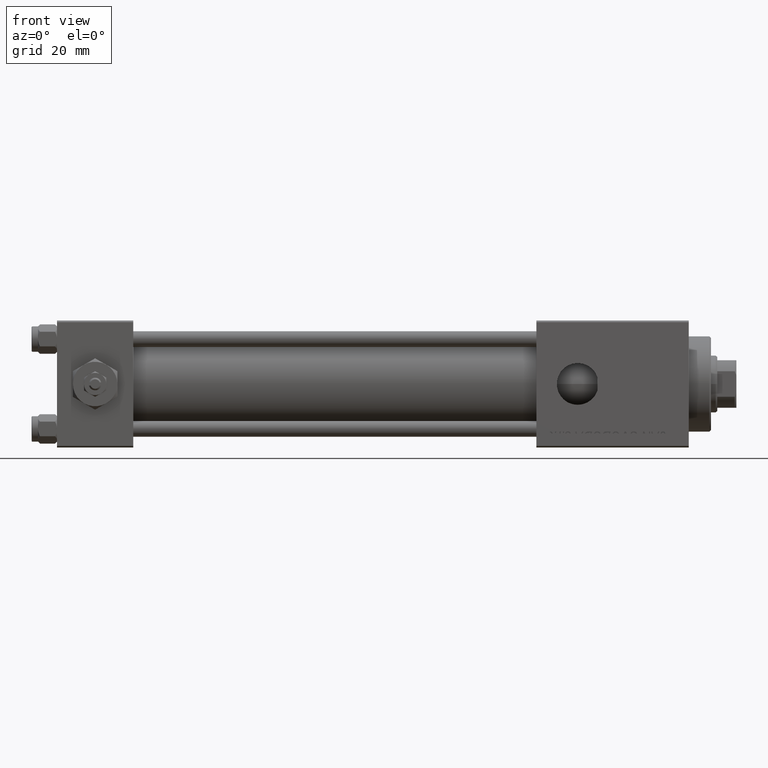
[diagram: clean part render]
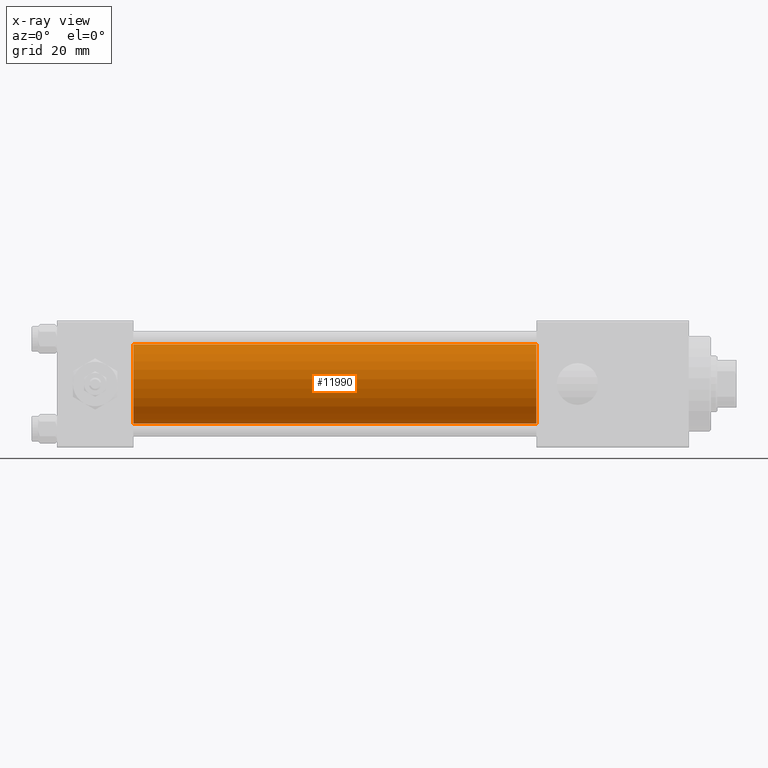
[diagram: x-ray — body ghosted, one internal face saturated and labeled with its STEP entity id]
A machine part, front view, then the same camera in x-ray: the body is ghosted and one INTERNAL B-rep face — a face not visible from any outside direction — is saturated and labeled: STEP entity #11990.
In plain terms, the highlighted cylindrical surface (partial cylindrical patch) has radius 12.5 mm, axis along (-1, -0, -0).
Its self-contained STEP definition (entity closure, byte-faithful):
#1827 = CARTESIAN_POINT ( 'NONE',  ( 151.0000000000000000, -2.602085213965210642E-15, 0.000000000000000000 ) ) ;
#2344 = CARTESIAN_POINT ( 'NONE',  ( 151.0000000000000000, -2.602085213965210642E-15, 0.000000000000000000 ) ) ;
#2602 = DIRECTION ( 'NONE',  ( 1.000000000000000000, 0.000000000000000000, 0.000000000000000000 ) ) ;
#3847 = VECTOR ( 'NONE', #47648, 1000.000000000000000 ) ;
#4019 = DIRECTION ( 'NONE',  ( -1.000000000000000000, -0.000000000000000000, -0.000000000000000000 ) ) ;
#5938 = CARTESIAN_POINT ( 'NONE',  ( 24.00000000000000000, -2.602085213965210642E-15, 0.000000000000000000 ) ) ;
#7435 = LINE ( 'NONE', #47335, #31194 ) ;
#8948 = CARTESIAN_POINT ( 'NONE',  ( 151.0000000000000000, -1.071276715031019515E-15, -12.49999999999999645 ) ) ;
#11990 = ADVANCED_FACE ( 'NONE', ( #46172 ), #29382, .F. ) ;
#13005 = CIRCLE ( 'NONE', #49080, 12.49999999999999645 ) ;
#13014 = DIRECTION ( 'NONE',  ( 1.000000000000000000, 0.000000000000000000, 0.000000000000000000 ) ) ;
#14386 = DIRECTION ( 'NONE',  ( 0.000000000000000000, 0.000000000000000000, -1.000000000000000000 ) ) ;
#16310 = CIRCLE ( 'NONE', #45649, 12.49999999999999645 ) ;
#21101 = ORIENTED_EDGE ( 'NONE', *, *, #48055, .F. ) ;
#21499 = CARTESIAN_POINT ( 'NONE',  ( 24.00000000000000000, -1.071276715031019515E-15, -12.49999999999999645 ) ) ;
#24842 = CARTESIAN_POINT ( 'NONE',  ( 24.00000000000000000, -2.602085213965210642E-15, 12.49999999999999645 ) ) ;
#27446 = LINE ( 'NONE', #27946, #3847 ) ;
#27946 = CARTESIAN_POINT ( 'NONE',  ( 151.0000000000000000, -2.602085213965210642E-15, 12.49999999999999645 ) ) ;
#29044 = DIRECTION ( 'NONE',  ( 0.000000000000000000, 0.000000000000000000, -1.000000000000000000 ) ) ;
#29382 = CYLINDRICAL_SURFACE ( 'NONE', #34770, 12.49999999999999645 ) ;
#31194 = VECTOR ( 'NONE', #4019, 1000.000000000000000 ) ;
#33345 = ORIENTED_EDGE ( 'NONE', *, *, #39942, .T. ) ;
#33575 = DIRECTION ( 'NONE',  ( -1.000000000000000000, -0.000000000000000000, -0.000000000000000000 ) ) ;
#34770 = AXIS2_PLACEMENT_3D ( 'NONE', #1827, #33575, #45392 ) ;
#36814 = VERTEX_POINT ( 'NONE', #8948 ) ;
#38302 = ORIENTED_EDGE ( 'NONE', *, *, #45741, .T. ) ;
#39942 = EDGE_CURVE ( 'NONE', #36814, #49888, #7435, .T. ) ;
#43596 = VERTEX_POINT ( 'NONE', #24842 ) ;
#44745 = CARTESIAN_POINT ( 'NONE',  ( 151.0000000000000000, -2.602085213965210642E-15, 12.49999999999999645 ) ) ;
#45392 = DIRECTION ( 'NONE',  ( 0.000000000000000000, 0.000000000000000000, 1.000000000000000000 ) ) ;
#45649 = AXIS2_PLACEMENT_3D ( 'NONE', #2344, #2602, #14386 ) ;
#45741 = EDGE_CURVE ( 'NONE', #46222, #36814, #16310, .T. ) ;
#46172 = FACE_OUTER_BOUND ( 'NONE', #47022, .T. ) ;
#46222 = VERTEX_POINT ( 'NONE', #44745 ) ;
#47022 = EDGE_LOOP ( 'NONE', ( #38302, #33345, #49631, #21101 ) ) ;
#47335 = CARTESIAN_POINT ( 'NONE',  ( 151.0000000000000000, -1.071276715031019515E-15, -12.49999999999999645 ) ) ;
#47648 = DIRECTION ( 'NONE',  ( -1.000000000000000000, -0.000000000000000000, -0.000000000000000000 ) ) ;
#47913 = EDGE_CURVE ( 'NONE', #43596, #49888, #13005, .T. ) ;
#48055 = EDGE_CURVE ( 'NONE', #46222, #43596, #27446, .T. ) ;
#49080 = AXIS2_PLACEMENT_3D ( 'NONE', #5938, #13014, #29044 ) ;
#49631 = ORIENTED_EDGE ( 'NONE', *, *, #47913, .F. ) ;
#49888 = VERTEX_POINT ( 'NONE', #21499 ) ;